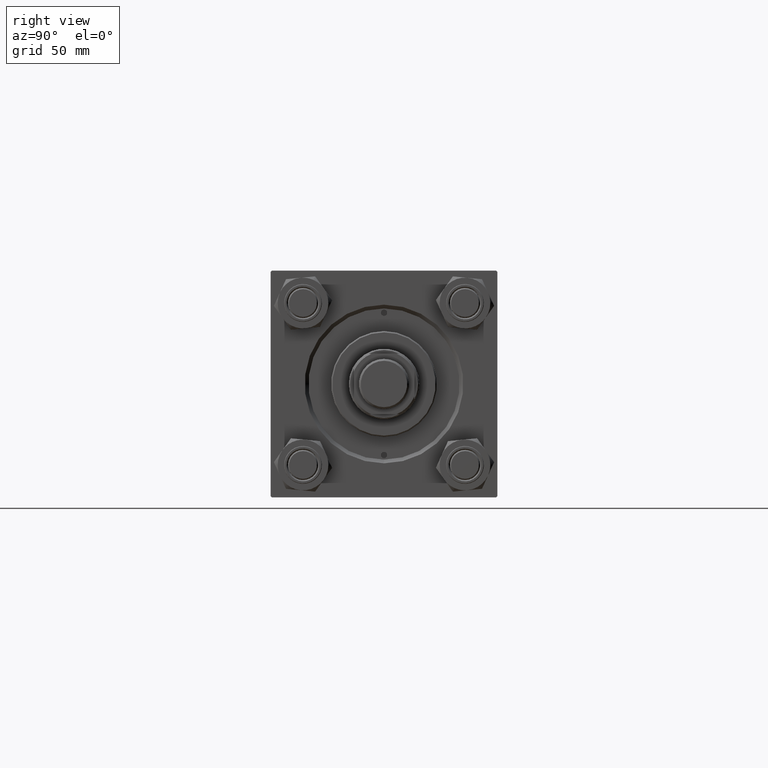
[diagram: clean part render]
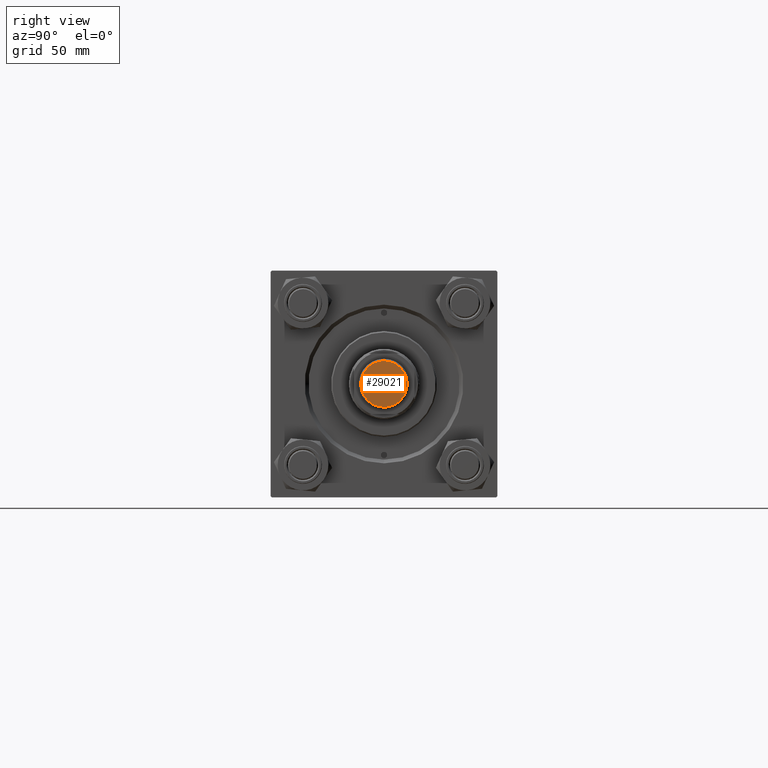
[diagram: same view with one face highlighted and labeled with its STEP entity id]
A machine part, right view. The second image highlights one B-rep face of the part: STEP entity #29021.
In plain terms, the highlighted planar face has unit normal (-1, 0, 0).
Its self-contained STEP definition (entity closure, byte-faithful):
#577 = CARTESIAN_POINT ( 'NONE',  ( 0.000000000000000000, 0.000000000000000000, 0.000000000000000000 ) ) ;
#755 = DIRECTION ( 'NONE',  ( 1.000000000000000000, 0.000000000000000000, 0.000000000000000000 ) ) ;
#1911 = CARTESIAN_POINT ( 'NONE',  ( 0.000000000000000000, 0.000000000000000000, 0.000000000000000000 ) ) ;
#2350 = ORIENTED_EDGE ( 'NONE', *, *, #38015, .T. ) ;
#2644 = CIRCLE ( 'NONE', #27047, 9.199999999999992184 ) ;
#5856 = AXIS2_PLACEMENT_3D ( 'NONE', #577, #16120, #31676 ) ;
#6021 = CIRCLE ( 'NONE', #19831, 9.199999999999992184 ) ;
#12987 = CARTESIAN_POINT ( 'NONE',  ( 0.000000000000000000, 0.000000000000000000, 0.000000000000000000 ) ) ;
#13329 = CARTESIAN_POINT ( 'NONE',  ( -9.199999999999992184, 1.175660927181458645E-15, 0.000000000000000000 ) ) ;
#16120 = DIRECTION ( 'NONE',  ( 0.000000000000000000, 0.000000000000000000, 1.000000000000000000 ) ) ;
#17626 = EDGE_LOOP ( 'NONE', ( #2350, #29569 ) ) ;
#17947 = DIRECTION ( 'NONE',  ( 1.000000000000000000, 0.000000000000000000, 0.000000000000000000 ) ) ;
#19831 = AXIS2_PLACEMENT_3D ( 'NONE', #12987, #39740, #755 ) ;
#22039 = DIRECTION ( 'NONE',  ( -0.000000000000000000, -0.000000000000000000, -1.000000000000000000 ) ) ;
#26711 = VERTEX_POINT ( 'NONE', #49047 ) ;
#27047 = AXIS2_PLACEMENT_3D ( 'NONE', #1911, #22039, #17947 ) ;
#29021 = ADVANCED_FACE ( 'NONE', ( #35479 ), #43400, .F. ) ;
#29569 = ORIENTED_EDGE ( 'NONE', *, *, #34342, .T. ) ;
#31676 = DIRECTION ( 'NONE',  ( 1.000000000000000000, 0.000000000000000000, -0.000000000000000000 ) ) ;
#34342 = EDGE_CURVE ( 'NONE', #47892, #26711, #2644, .T. ) ;
#35479 = FACE_OUTER_BOUND ( 'NONE', #17626, .T. ) ;
#38015 = EDGE_CURVE ( 'NONE', #26711, #47892, #6021, .T. ) ;
#39740 = DIRECTION ( 'NONE',  ( -0.000000000000000000, -0.000000000000000000, -1.000000000000000000 ) ) ;
#43400 = PLANE ( 'NONE',  #5856 ) ;
#47892 = VERTEX_POINT ( 'NONE', #13329 ) ;
#49047 = CARTESIAN_POINT ( 'NONE',  ( 9.199999999999992184, 0.000000000000000000, 0.000000000000000000 ) ) ;